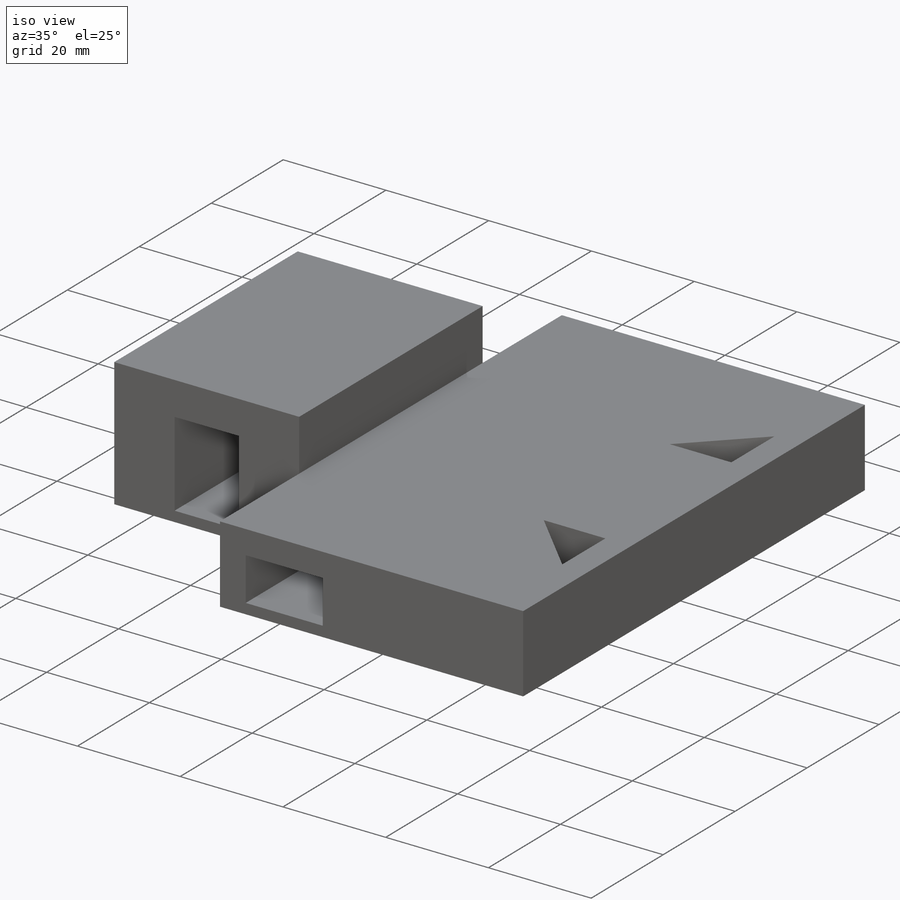
[diagram: iso view]
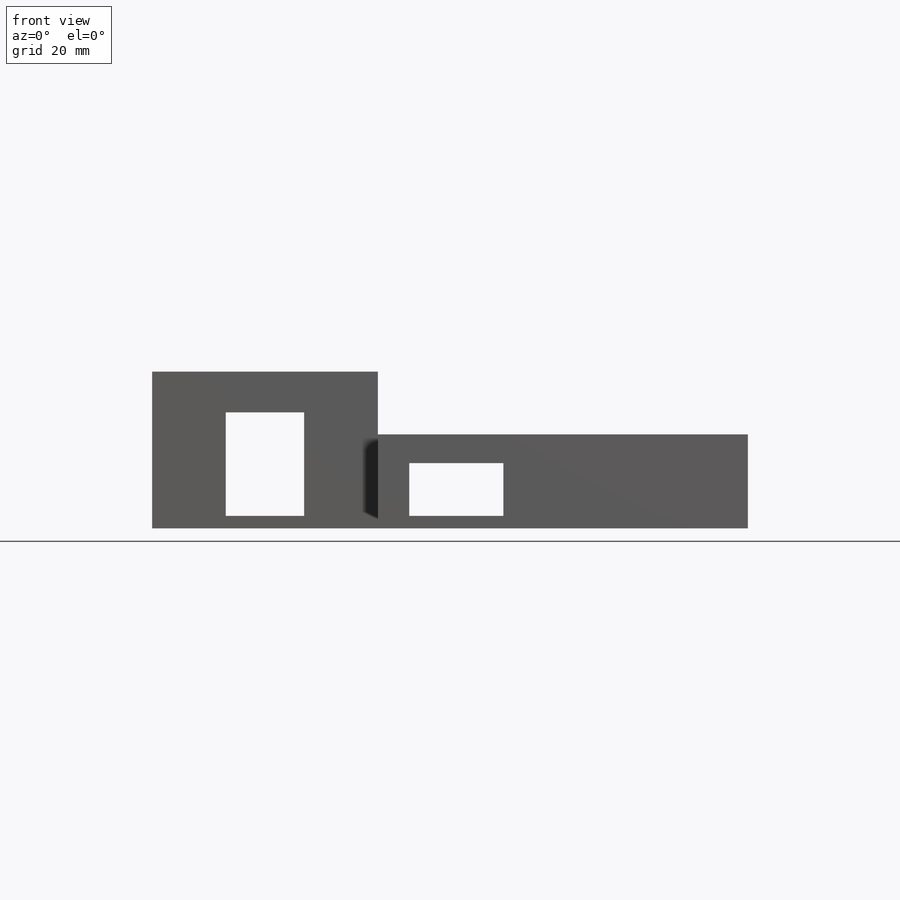
[diagram: front view]
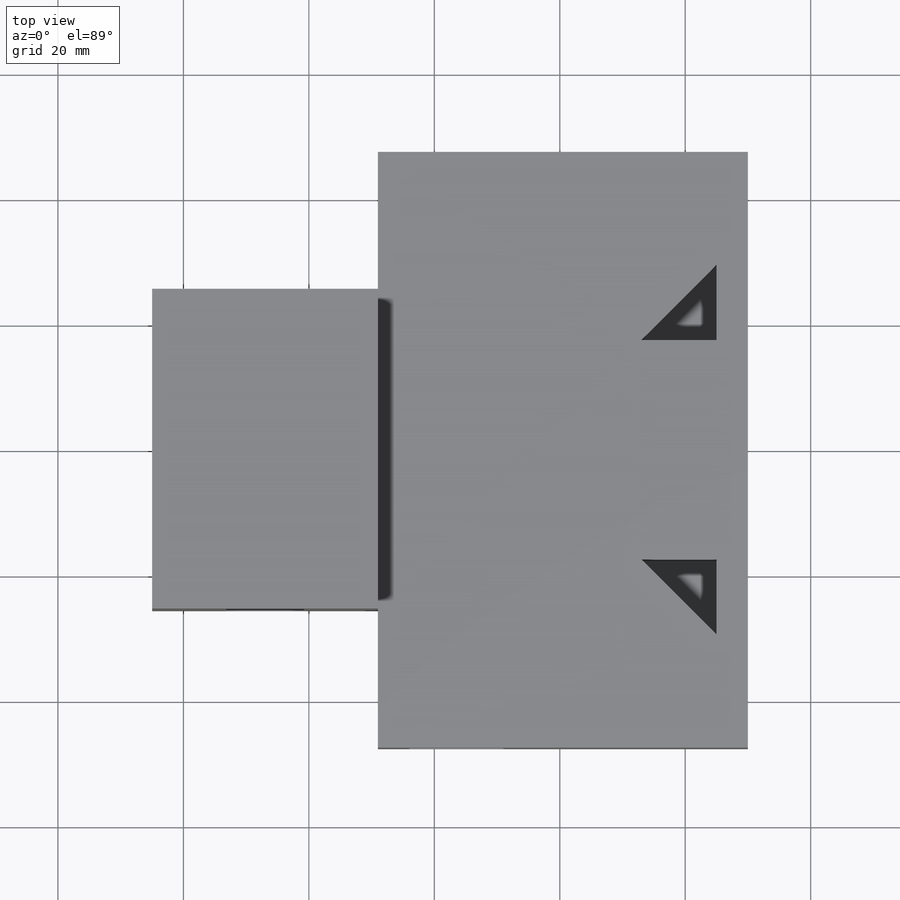
[diagram: top view]
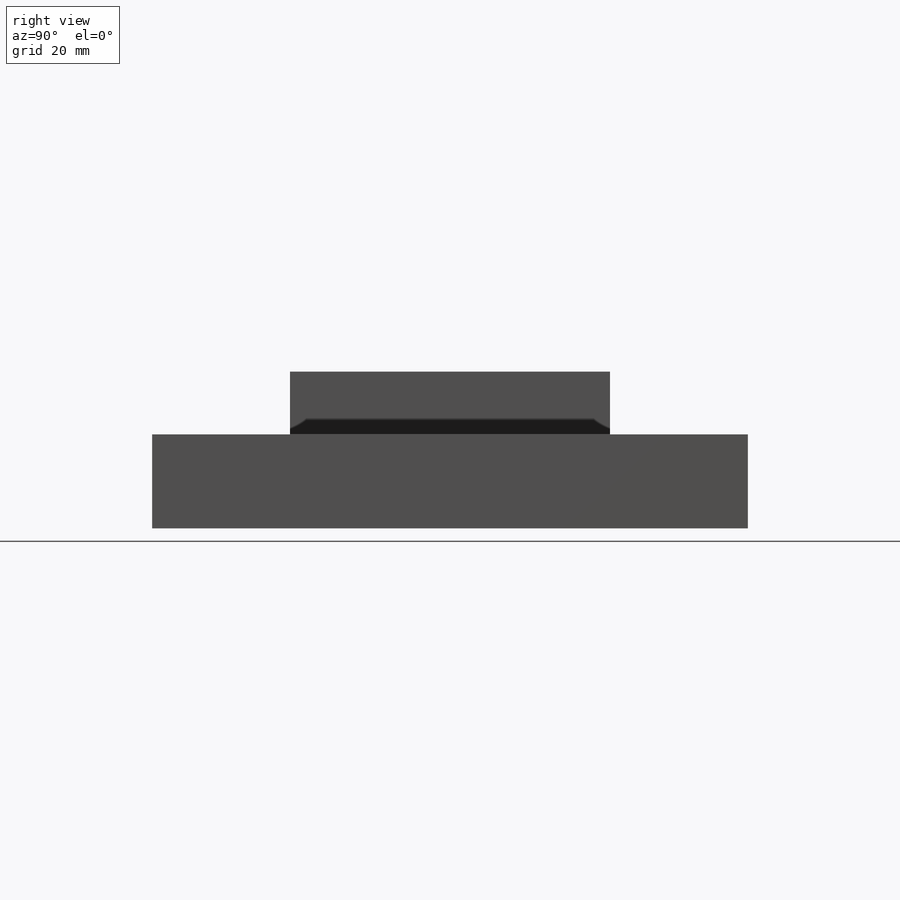
[diagram: right view]
SOLIDWORKS PART (.sldprt)
format: sldprt  version: not decoded by parser v0  size: 291,840 bytes
history: native  units: mm
features: sketch x13, cut_extrude x9, extrude x3, material x1 (+12 scaffold rows collapsed)
feature tree (38):
  scaffold x12  (default folders/planes/origin — collapsed)
  material  "Material <not specified>"
  sketch  "Sketch1"  dims[D1=95.0mm D2=90.0mm]
  extrude  "Boss-Extrude3"  Depth=15mm
  sketch  "Sketch5"  dims[D1=15.0mm D2=8.4mm D3=2.0mm]
  cut_extrude  "Cut-Extrude3"  Depth=40mm
  sketch  "Sketch7"
  extrude  "Boss-Extrude4"  Depth=5mm
  sketch  "Sketch10"  dims[D1=12.0mm D2=12.0mm D3=5.0mm D4=18.0mm]
  cut_extrude  "Cut-Extrude7"  Depth=13mm
  sketch  "Sketch12"  dims[D1=15.0mm D2=8.4mm D3=1.0mm D4=0.0mm]
  cut_extrude  "Cut-Extrude8"  Depth=20mm
  sketch  "Sketch13"  dims[D1=12.0mm D2=12.0mm D3=5.0mm D4=18.0mm]
  cut_extrude  "Cut-Extrude9"  Depth=13mm
  sketch  "Sketch14"  dims[D1=8.4mm D2=15.0mm D3=1.0mm D4=0.0mm]
  cut_extrude  "Cut-Extrude11"  Depth=20mm
  sketch  "Sketch15"  dims[D1=36.0mm]
  cut_extrude  "Cut-Extrude12"  Depth=22mm
  sketch  "Sketch16"  dims[D1=36.0mm]
  cut_extrude  "Cut-Extrude13"  Depth=22mm
  sketch  "Sketch17"
  extrude  "Boss-Extrude5"  Depth=10mm
  sketch  "Sketch18"  dims[D1=12.5mm D2=16.5mm D3=2.0mm D4=11.75mm]
  cut_extrude  "Cut-Extrude14"  Depth=100mm
  sketch  "Sketch19"  dims[D1=15.0mm D2=8.4mm D3=2.0mm D4=5.0mm]
  cut_extrude  "Cut-Extrude15"  Depth=100mm
  sketch  "Sketch20"  dims[D1=~4.029654mm]
decode coverage: 23 of 25 modeling features carry decoded parameters
note: ~ marks probable driven/reference dimensions
note: suppression state not decoded; provenance and decode notes live in map.json
